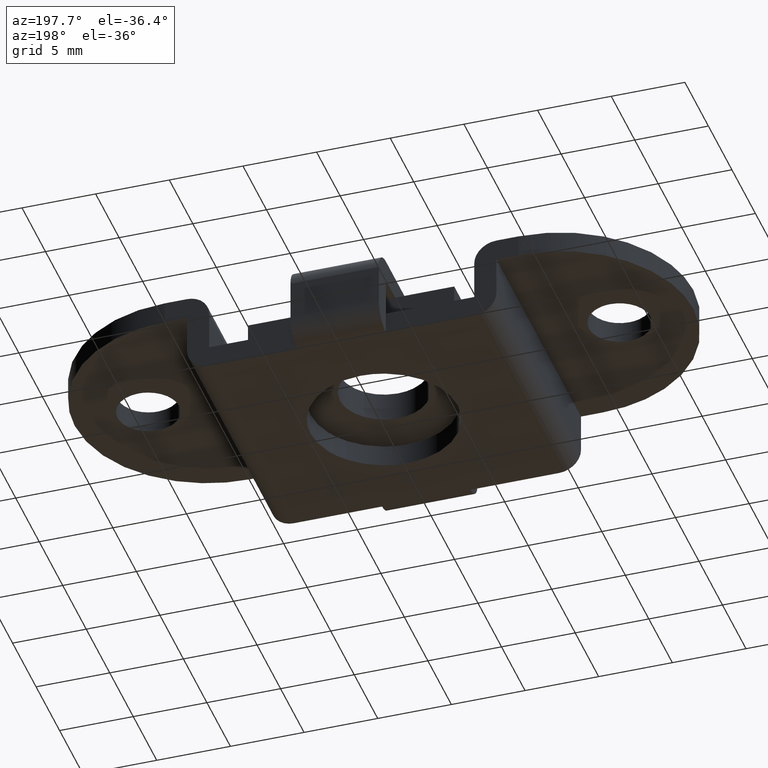
[diagram: clean part render]
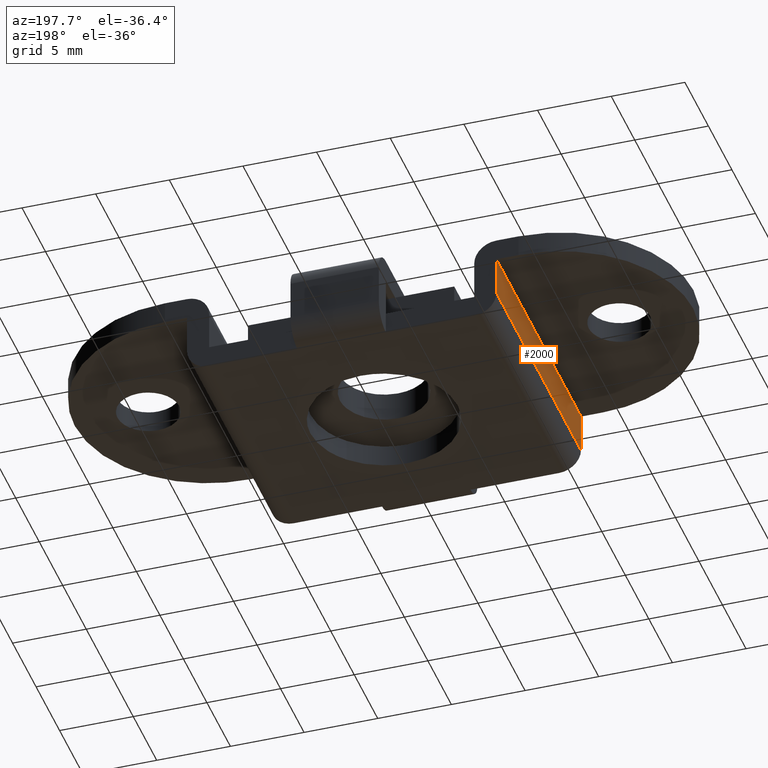
[diagram: same view with one face highlighted and labeled with its STEP entity id]
A machine part, auxiliary view. The second image highlights one B-rep face of the part: STEP entity #2000.
In plain terms, the highlighted face is a freeform B-spline surface patch.
Its self-contained STEP definition (entity closure, byte-faithful):
#1199=CARTESIAN_POINT('',(-10.500000000000000,9.0,1.500000000000000));
#1200=VERTEX_POINT('',#1199);
#1221=CARTESIAN_POINT('',(-10.500000000000000,-9.0,1.500000000000000));
#1222=VERTEX_POINT('',#1221);
#1236=CARTESIAN_POINT('',(-10.500000000000000,9.0,1.500000000000000));
#1237=CARTESIAN_POINT('',(-10.500000000000000,-9.0,1.500000000000000));
#1238=QUASI_UNIFORM_CURVE('',1,(#1236,#1237),.UNSPECIFIED.,.F.,.U.);
#1239=EDGE_CURVE('',#1200,#1222,#1238,.T.);
#1807=CARTESIAN_POINT('',(-10.500000000000000,9.0,4.199999999999889));
#1808=VERTEX_POINT('',#1807);
#1814=CARTESIAN_POINT('',(-10.500000000000000,-9.0,4.199999999999889));
#1815=VERTEX_POINT('',#1814);
#1816=CARTESIAN_POINT('',(-10.500000000000000,9.0,4.199999999999889));
#1817=CARTESIAN_POINT('',(-10.500000000000000,-9.0,4.199999999999889));
#1818=QUASI_UNIFORM_CURVE('',1,(#1816,#1817),.UNSPECIFIED.,.F.,.U.);
#1819=EDGE_CURVE('',#1808,#1815,#1818,.T.);
#1981=CARTESIAN_POINT('',(-10.500000000000000,-9.899099965112507,4.334864994766759));
#1982=CARTESIAN_POINT('',(-10.500000000000000,-9.899099965112507,1.365134932813486));
#1983=CARTESIAN_POINT('',(-10.500000000000000,9.899100447910129,4.334864994766759));
#1984=CARTESIAN_POINT('',(-10.500000000000000,9.899100447910129,1.365134932813486));
#1985=B_SPLINE_SURFACE_WITH_KNOTS('',1,1,((#1981,#1983),(#1982,#1984)),.UNSPECIFIED.,.F.,.F.,.U.,(2,2),(2,2),(0.0,2.969730061953274),(0.0,19.798200413022631),.UNSPECIFIED.);
#1986=CARTESIAN_POINT('',(-10.500000000000000,9.0,1.500000000000000));
#1987=CARTESIAN_POINT('',(-10.500000000000000,9.0,4.199999999999889));
#1988=QUASI_UNIFORM_CURVE('',1,(#1986,#1987),.UNSPECIFIED.,.F.,.U.);
#1989=EDGE_CURVE('',#1200,#1808,#1988,.T.);
#1990=ORIENTED_EDGE('',*,*,#1989,.F.);
#1991=ORIENTED_EDGE('',*,*,#1239,.T.);
#1992=CARTESIAN_POINT('',(-10.500000000000000,-9.0,1.500000000000000));
#1993=CARTESIAN_POINT('',(-10.500000000000000,-9.0,4.199999999999889));
#1994=QUASI_UNIFORM_CURVE('',1,(#1992,#1993),.UNSPECIFIED.,.F.,.U.);
#1995=EDGE_CURVE('',#1222,#1815,#1994,.T.);
#1996=ORIENTED_EDGE('',*,*,#1995,.T.);
#1997=ORIENTED_EDGE('',*,*,#1819,.F.);
#1998=EDGE_LOOP('',(#1990,#1991,#1996,#1997));
#1999=FACE_OUTER_BOUND('',#1998,.T.);
#2000=ADVANCED_FACE('',(#1999),#1985,.F.);